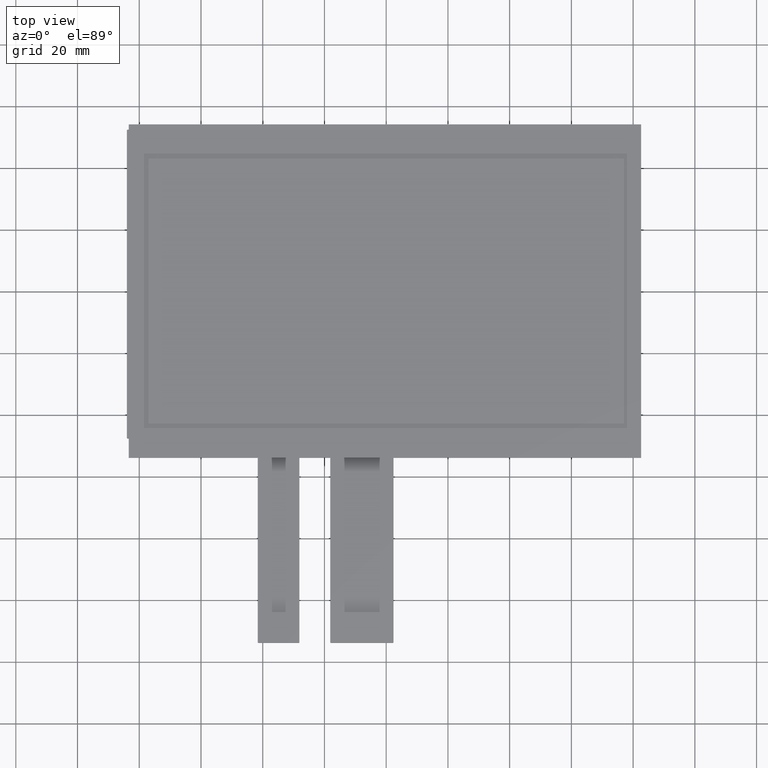
[diagram: clean part render]
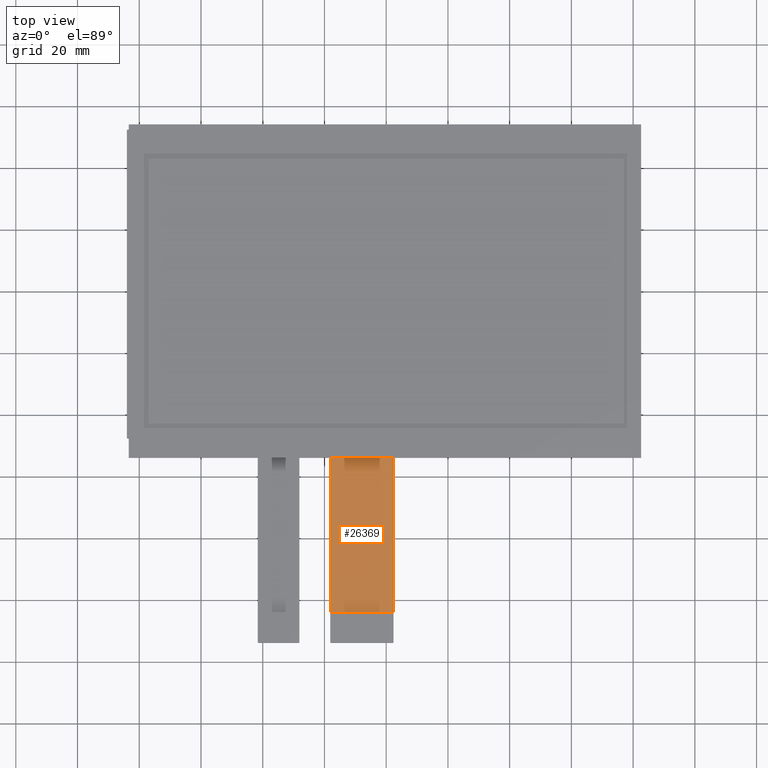
[diagram: same view with one face highlighted and labeled with its STEP entity id]
A machine part, top view. The second image highlights one B-rep face of the part: STEP entity #26369.
In plain terms, the highlighted planar face has unit normal (0, 0, 1).
Its self-contained STEP definition (entity closure, byte-faithful):
#1099=FACE_OUTER_BOUND('',#2479,.T.);
#2479=EDGE_LOOP('',(#18966,#18967,#18968,#18969));
#4546=LINE('',#38316,#8016);
#4557=LINE('',#38338,#8027);
#4567=LINE('',#38357,#8037);
#4568=LINE('',#38359,#8038);
#8016=VECTOR('',#30889,10.);
#8027=VECTOR('',#30908,10.);
#8037=VECTOR('',#30928,10.);
#8038=VECTOR('',#30931,10.);
#11189=VERTEX_POINT('',#38313);
#11190=VERTEX_POINT('',#38315);
#11197=VERTEX_POINT('',#38337);
#11201=VERTEX_POINT('',#38355);
#14075=EDGE_CURVE('',#11190,#11189,#4546,.T.);
#14086=EDGE_CURVE('',#11189,#11197,#4557,.T.);
#14096=EDGE_CURVE('',#11197,#11201,#4567,.T.);
#14097=EDGE_CURVE('',#11190,#11201,#4568,.T.);
#18966=ORIENTED_EDGE('',*,*,#14086,.T.);
#18967=ORIENTED_EDGE('',*,*,#14096,.T.);
#18968=ORIENTED_EDGE('',*,*,#14097,.F.);
#18969=ORIENTED_EDGE('',*,*,#14075,.T.);
#25199=PLANE('',#27785);
#26369=ADVANCED_FACE('',(#1099),#25199,.T.);
#27785=AXIS2_PLACEMENT_3D('',#38358,#30929,#30930);
#30889=DIRECTION('',(7.40148683083438E-17,-1.,0.));
#30908=DIRECTION('',(1.,0.,0.));
#30928=DIRECTION('',(-1.85037170770859E-16,1.,0.));
#30929=DIRECTION('center_axis',(0.,0.,1.));
#30930=DIRECTION('ref_axis',(-1.,0.,0.));
#30931=DIRECTION('',(1.,5.35047240783208E-17,0.));
#38313=CARTESIAN_POINT('',(-18.12,-104.000243326993,-1.1));
#38315=CARTESIAN_POINT('',(-18.12,-54.0002433269934,-1.1));
#38316=CARTESIAN_POINT('',(-18.12,-54.0002433269934,-1.1));
#38337=CARTESIAN_POINT('',(2.38,-104.000243326993,-1.1));
#38338=CARTESIAN_POINT('',(-2.745,-104.000243326993,-1.1));
#38355=CARTESIAN_POINT('',(2.37999999999999,-54.0002433269934,-1.1));
#38357=CARTESIAN_POINT('',(2.38,-114.000243326993,-1.1));
#38358=CARTESIAN_POINT('Origin',(-7.87000000000001,-84.0002433269934,-1.1));
#38359=CARTESIAN_POINT('',(37.365,-54.0002433269934,-1.1));